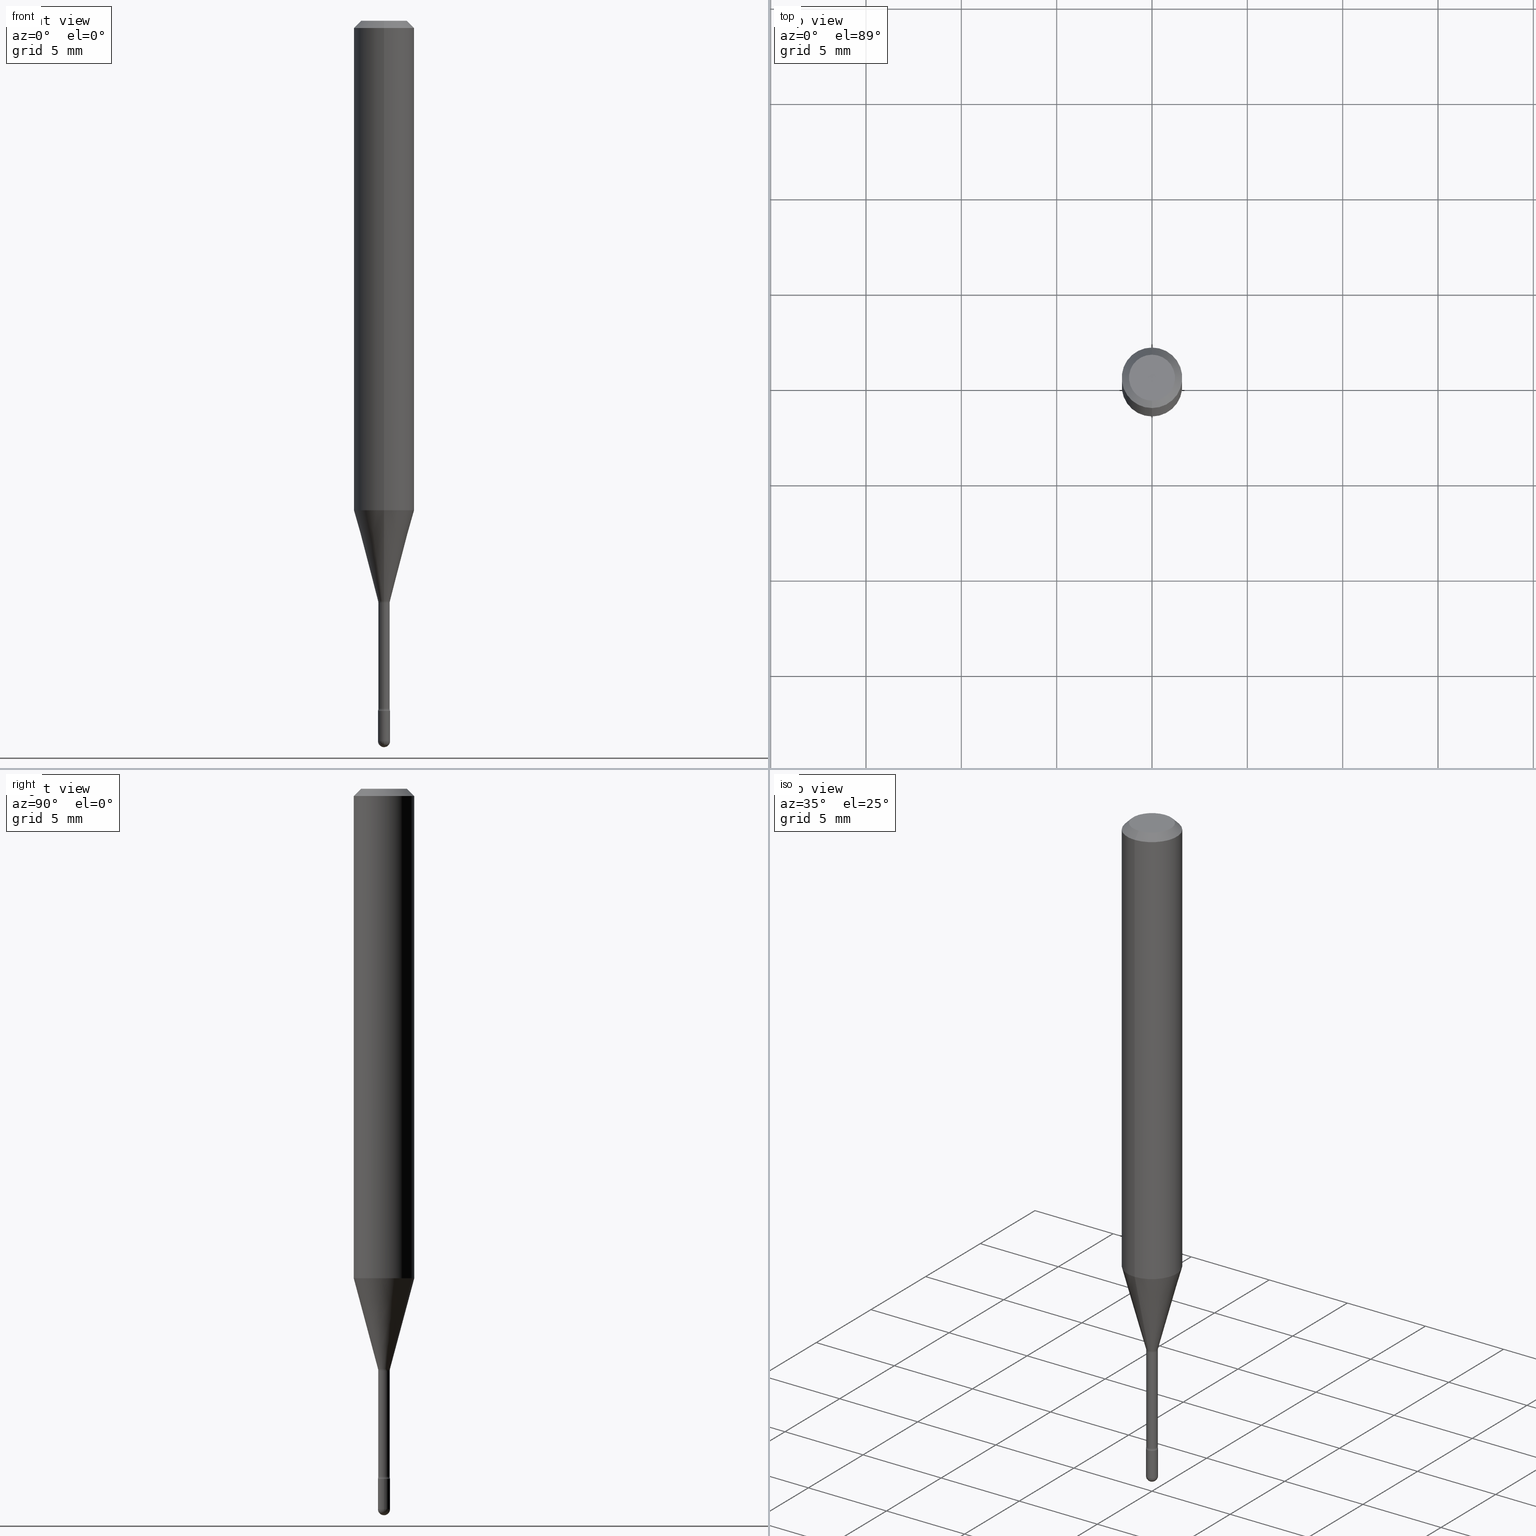
[diagram: canonical four-view strip — front | top / right | iso, engineering-drawing reading convention]
A machine part, canonical four-view strip (front | top / right | iso — engineering-drawing reading convention). The complete STEP part file that produces these views, byte-faithful:
ISO-10303-21;
HEADER;
FILE_DESCRIPTION (( 'STEP AP203' ),
    '1' );
FILE_NAME ('03727.STEP',
    '2024-04-09T20:16:25',
    ( '' ),
    ( '' ),
    'SwSTEP 2.0',
    'SolidWorks 2023',
    '' );
FILE_SCHEMA (( 'CONFIG_CONTROL_DESIGN' ));
ENDSEC;

DATA;
#1 = CARTESIAN_POINT ( 'NONE',  ( -4.364351673553912750E-16, -0.06250000000000005551, -0.01499999999999986587 ) ) ;
#2 = CARTESIAN_POINT ( 'NONE',  ( 3.668277932510605575E-31, -5.237115000342280931E-17, -0.01500000000000008271 ) ) ;
#3 = CIRCLE ( 'NONE', #78, 0.01250000000000000069 ) ;
#4 = ADVANCED_FACE ( 'NONE', ( #554 ), #122, .T. ) ;
#5 = CIRCLE ( 'NONE', #235, 0.01499999999999998904 ) ;
#6 = ORIENTED_EDGE ( 'NONE', *, *, #518, .F. ) ;
#7 = DIRECTION ( 'NONE',  ( 1.000000000000000000, -7.105427357601001070E-15, 4.926314634896017409E-29 ) ) ;
#8 = DIRECTION ( 'NONE',  ( -1.000000000000000000, 6.982962677686265922E-15, -4.883557194083112901E-29 ) ) ;
#9 = DIRECTION ( 'NONE',  ( -2.445468806185136597E-29, 3.491481338843145583E-15, 1.000000000000000000 ) ) ;
#10 = ORIENTED_EDGE ( 'NONE', *, *, #456, .F. ) ;
#11 = ADVANCED_FACE ( 'NONE', ( #324 ), #427, .T. ) ;
#12 = DIRECTION ( 'NONE',  ( -2.445518621673723305E-29, 3.491410000228168223E-15, 1.000000000000000000 ) ) ;
#13 = TOROIDAL_SURFACE ( 'NONE', #341, 0.02675000000000002723, 0.01499999999999998383 ) ;
#14 = ADVANCED_FACE ( 'NONE', ( #383 ), #558, .T. ) ;
#15 = VERTEX_POINT ( 'NONE', #86 ) ;
#16 = EDGE_LOOP ( 'NONE', ( #460, #288, #550, #509, #345 ) ) ;
#17 = PERSON_AND_ORGANIZATION ( #125, #70 ) ;
#18 = FACE_OUTER_BOUND ( 'NONE', #409, .T. ) ;
#19 = APPROVAL ( #496, 'UNSPECIFIED' ) ;
#20 = MANIFOLD_SOLID_BREP ( 'Body-Move/Copy2[2]', #212 ) ;
#21 = ORIENTED_EDGE ( 'NONE', *, *, #343, .F. ) ;
#22 = ORIENTED_EDGE ( 'NONE', *, *, #151, .F. ) ;
#23 = DATE_AND_TIME ( #242, #342 ) ;
#24 = CIRCLE ( 'NONE', #335, 0.04749999999999999362 ) ;
#25 = CONICAL_SURFACE ( 'NONE', #387, 0.01226111260566398360, 0.2617993877991499074 ) ;
#26 = ORIENTED_EDGE ( 'NONE', *, *, #228, .T. ) ;
#27 = ORIENTED_EDGE ( 'NONE', *, *, #188, .F. ) ;
#28 = DIRECTION ( 'NONE',  ( 0.000000000000000000, 0.000000000000000000, 1.000000000000000000 ) ) ;
#29 = ORIENTED_EDGE ( 'NONE', *, *, #251, .F. ) ;
#30 = COORDINATED_UNIVERSAL_TIME_OFFSET ( 5, 0, .BEHIND. ) ;
#31 = VERTEX_POINT ( 'NONE', #252 ) ;
#32 = AXIS2_PLACEMENT_3D ( 'NONE', #201, #236, #194 ) ;
#33 = AXIS2_PLACEMENT_3D ( 'NONE', #146, #451, #50 ) ;
#34 = ADVANCED_FACE ( 'NONE', ( #517 ), #523, .T. ) ;
#35 = DIRECTION ( 'NONE',  ( -6.982962677686266711E-15, -1.000000000000000000, 3.491410000228168223E-15 ) ) ;
#36 = CARTESIAN_POINT ( 'NONE',  ( 3.637634849200391024E-29, -5.193578491529179010E-15, -1.487500000000000266 ) ) ;
#37 = CARTESIAN_POINT ( 'NONE',  ( -8.204981146277921190E-17, -0.01175000000000500297, -1.420316251501201554 ) ) ;
#38 = DIRECTION ( 'NONE',  ( -1.000000000000000000, 6.982962677686266711E-15, -4.883557194083112901E-29 ) ) ;
#39 = CYLINDRICAL_SURFACE ( 'NONE', #408, 0.06250000000000000000 ) ;
#40 = AXIS2_PLACEMENT_3D ( 'NONE', #259, #443, #144 ) ;
#41 = CARTESIAN_POINT ( 'NONE',  ( 3.473409841712008038E-29, -4.958906363977880631E-15, -1.420316251501201554 ) ) ;
#42 = VERTEX_POINT ( 'NONE', #389 ) ;
#43 = DIRECTION ( 'NONE',  ( -1.807323732225327773E-15, -0.2588190451025178529, 0.9659258262890690894 ) ) ;
#44 = EDGE_CURVE ( 'NONE', #263, #101, #67, .T. ) ;
#45 = DIRECTION ( 'NONE',  ( -6.982962677686266711E-15, -1.000000000000000000, 0.000000000000000000 ) ) ;
#46 = ORIENTED_EDGE ( 'NONE', *, *, #128, .F. ) ;
#47 = VECTOR ( 'NONE', #354, 39.37007874015748854 ) ;
#48 = AXIS2_PLACEMENT_3D ( 'NONE', #313, #92, #489 ) ;
#49 = LOCAL_TIME ( 16, 16, 25.00000000000000000, #410 ) ;
#50 = DIRECTION ( 'NONE',  ( 1.000000000000000000, -6.982962677686267499E-15, 4.876176775795936353E-29 ) ) ;
#51 = DIRECTION ( 'NONE',  ( -2.445518621673723586E-29, 3.491410000228167829E-15, 1.000000000000000000 ) ) ;
#52 = FACE_OUTER_BOUND ( 'NONE', #543, .T. ) ;
#53 = VERTEX_POINT ( 'NONE', #77 ) ;
#54 = DIRECTION ( 'NONE',  ( -2.445468806185136597E-29, 3.491481338843145583E-15, 1.000000000000000000 ) ) ;
#55 = ORIENTED_EDGE ( 'NONE', *, *, #179, .T. ) ;
#56 = DIRECTION ( 'NONE',  ( -6.982962677686266711E-15, -1.000000000000000000, 3.491410000228168223E-15 ) ) ;
#57 = VECTOR ( 'NONE', #170, 39.37007874015748143 ) ;
#58 = VERTEX_POINT ( 'NONE', #205 ) ;
#59 = PERSON_AND_ORGANIZATION_ROLE ( 'creator' ) ;
#60 = SECURITY_CLASSIFICATION ( '', '', #286 ) ;
#61 = CARTESIAN_POINT ( 'NONE',  ( -0.01250000000000000069, -4.995651857720318490E-15, -1.425000000000000266 ) ) ;
#62 = CARTESIAN_POINT ( 'NONE',  ( 3.668277932510605575E-31, -5.237115000342280931E-17, -0.01500000000000008271 ) ) ;
#63 = ADVANCED_FACE ( 'NONE', ( #476 ), #118, .F. ) ;
#64 = SHAPE_DEFINITION_REPRESENTATION ( #134, #302 ) ;
#65 = EDGE_LOOP ( 'NONE', ( #395, #225 ) ) ;
#66 = PERSON_AND_ORGANIZATION ( #125, #70 ) ;
#67 = CIRCLE ( 'NONE', #438, 0.06250000000000000000 ) ;
#68 = EDGE_LOOP ( 'NONE', ( #29, #528, #487, #257 ) ) ;
#69 = CIRCLE ( 'NONE', #139, 0.01250000000000000243 ) ;
#70 = ORGANIZATION ( 'UNSPECIFIED', 'UNSPECIFIED', '' ) ;
#71 = EDGE_LOOP ( 'NONE', ( #27, #315, #379, #232 ) ) ;
#72 = CALENDAR_DATE ( 2024, 9, 4 ) ;
#73 = ORIENTED_EDGE ( 'NONE', *, *, #282, .F. ) ;
#74 = APPROVAL ( #504, 'UNSPECIFIED' ) ;
#75 = DIRECTION ( 'NONE',  ( -2.445518621673723586E-29, 3.491410000228167829E-15, 1.000000000000000000 ) ) ;
#76 = DIRECTION ( 'NONE',  ( 7.105427357600997914E-15, 1.000000000000000000, 0.000000000000000000 ) ) ;
#77 = CARTESIAN_POINT ( 'NONE',  ( -3.773273898774340269E-16, -0.04749999999999999362, 8.309155435508116494E-17 ) ) ;
#78 = AXIS2_PLACEMENT_3D ( 'NONE', #477, #303, #434 ) ;
#79 = CONICAL_SURFACE ( 'NONE', #439, 0.01226111260566398360, 0.2617993877991499074 ) ;
#80 = DIRECTION ( 'NONE',  ( -2.445518621673723586E-29, 3.491410000228167829E-15, 1.000000000000000000 ) ) ;
#81 = CARTESIAN_POINT ( 'NONE',  ( 3.637634849200390463E-29, -5.193578491529179010E-15, -1.487499999999999822 ) ) ;
#82 = PLANE ( 'NONE',  #40 ) ;
#83 = EDGE_CURVE ( 'NONE', #263, #553, #386, .T. ) ;
#84 = DIRECTION ( 'NONE',  ( -6.982962677686265133E-15, -1.000000000000000000, 0.000000000000000000 ) ) ;
#85 = CARTESIAN_POINT ( 'NONE',  ( 8.348877145184664215E-17, 0.01174999999999580894, -1.201974787463810701 ) ) ;
#86 = CARTESIAN_POINT ( 'NONE',  ( 3.840629472727447874E-16, 0.04749999999999999362, -2.485923956665947867E-16 ) ) ;
#87 = CARTESIAN_POINT ( 'NONE',  ( 3.473339087963991852E-29, -4.959007687372093417E-15, -1.420316251501201554 ) ) ;
#88 = AXIS2_PLACEMENT_3D ( 'NONE', #181, #494, #314 ) ;
#89 = FACE_OUTER_BOUND ( 'NONE', #511, .T. ) ;
#90 = EDGE_CURVE ( 'NONE', #332, #405, #176, .T. ) ;
#91 = DIRECTION ( 'NONE',  ( -2.445468806185136597E-29, 3.491481338843145583E-15, 1.000000000000000000 ) ) ;
#92 = DIRECTION ( 'NONE',  ( -2.445518621673723586E-29, 3.491410000228167829E-15, 1.000000000000000000 ) ) ;
#93 = ORIENTED_EDGE ( 'NONE', *, *, #280, .F. ) ;
#94 = EDGE_LOOP ( 'NONE', ( #490, #55 ) ) ;
#95 = DIRECTION ( 'NONE',  ( -2.445518621673723586E-29, 3.491410000228167829E-15, 1.000000000000000000 ) ) ;
#96 = ADVANCED_FACE ( 'NONE', ( #262 ), #375, .T. ) ;
#97 = CIRCLE ( 'NONE', #464, 0.06250000000000000000 ) ;
#98 = LINE ( 'NONE', #312, #47 ) ;
#99 = CIRCLE ( 'NONE', #191, 0.01226111260566398360 ) ;
#100 = FACE_OUTER_BOUND ( 'NONE', #65, .T. ) ;
#101 = VERTEX_POINT ( 'NONE', #527 ) ;
#102 = DIRECTION ( 'NONE',  ( 1.000000000000000000, -6.982962677686292743E-15, 0.000000000000000000 ) ) ;
#103 = ORIENTED_EDGE ( 'NONE', *, *, #330, .T. ) ;
#104 = PERSON_AND_ORGANIZATION_ROLE ( 'design_supplier' ) ;
#105 = DIRECTION ( 'NONE',  ( -6.982962677686265922E-15, -1.000000000000000000, 3.483106191921935554E-15 ) ) ;
#106 = ORIENTED_EDGE ( 'NONE', *, *, #421, .T. ) ;
#107 = CIRCLE ( 'NONE', #336, 0.01175000000000000523 ) ;
#108 = ORIENTED_EDGE ( 'NONE', *, *, #233, .F. ) ;
#109 = APPROVAL_PERSON_ORGANIZATION ( #116, #19, #486 ) ;
#110 = ADVANCED_FACE ( 'NONE', ( #265 ), #132, .T. ) ;
#111 = DIRECTION ( 'NONE',  ( -2.445518621673722745E-29, 3.491410000228168223E-15, 1.000000000000000000 ) ) ;
#112 = MECHANICAL_CONTEXT ( 'NONE', #164, 'mechanical' ) ;
#113 = VERTEX_POINT ( 'NONE', #306 ) ;
#114 = ORIENTED_EDGE ( 'NONE', *, *, #330, .F. ) ;
#115 = DESIGN_CONTEXT ( 'detailed design', #211, 'design' ) ;
#116 = PERSON_AND_ORGANIZATION ( #125, #70 ) ;
#117 = DATE_TIME_ROLE ( 'classification_date' ) ;
#118 = TOROIDAL_SURFACE ( 'NONE', #276, 0.02675000000000000294, 0.01499999999999998904 ) ;
#119 = AXIS2_PLACEMENT_3D ( 'NONE', #264, #520, #76 ) ;
#120 = LOCAL_TIME ( 16, 16, 25.00000000000000000, #30 ) ;
#121 = EDGE_CURVE ( 'NONE', #53, #15, #24, .T. ) ;
#122 = PLANE ( 'NONE',  #32 ) ;
#123 = CARTESIAN_POINT ( 'NONE',  ( 3.668737688208442503E-29, -5.236456604015251240E-15, -1.500000000000000222 ) ) ;
#124 = ORIENTED_EDGE ( 'NONE', *, *, #272, .F. ) ;
#125 = PERSON ( 'UNSPECIFIED', 'UNSPECIFIED', 'UNSPECIFIED', ('UNSPECIFIED'), ('UNSPECIFIED'), ('UNSPECIFIED') ) ;
#126 = DIRECTION ( 'NONE',  ( -2.445518621673723586E-29, 3.491410000228167829E-15, 1.000000000000000000 ) ) ;
#127 = AXIS2_PLACEMENT_3D ( 'NONE', #297, #255, #473 ) ;
#128 = EDGE_CURVE ( 'NONE', #491, #384, #418, .T. ) ;
#129 = CIRCLE ( 'NONE', #153, 0.01249999999999996947 ) ;
#130 = ORIENTED_EDGE ( 'NONE', *, *, #440, .F. ) ;
#131 = CARTESIAN_POINT ( 'NONE',  ( 3.484864035885056593E-29, -4.975259250325139718E-15, -1.425000000000000266 ) ) ;
#132 = CYLINDRICAL_SURFACE ( 'NONE', #407, 0.01175000000000002605 ) ;
#133 = ORIENTED_EDGE ( 'NONE', *, *, #121, .F. ) ;
#134 = PRODUCT_DEFINITION_SHAPE ( 'NONE', 'NONE',  #472 ) ;
#135 = CARTESIAN_POINT ( 'NONE',  ( -1.169113584055446105E-44, 1.669184350826100908E-30, 4.780733988912460139E-16 ) ) ;
#136 = EDGE_CURVE ( 'NONE', #500, #101, #98, .T. ) ;
#137 = DIRECTION ( 'NONE',  ( 6.982962677686266711E-15, 1.000000000000000000, 0.000000000000000000 ) ) ;
#138 = DIRECTION ( 'NONE',  ( -2.445518621673723586E-29, 3.491410000228167829E-15, 1.000000000000000000 ) ) ;
#139 = AXIS2_PLACEMENT_3D ( 'NONE', #457, #498, #197 ) ;
#140 = APPROVAL_PERSON_ORGANIZATION ( #294, #295, #289 ) ;
#141 = CARTESIAN_POINT ( 'NONE',  ( 8.728703347111462148E-17, 0.01249999999999479305, -1.487499999999999822 ) ) ;
#142 = EDGE_CURVE ( 'NONE', #31, #58, #309, .T. ) ;
#143 = APPLICATION_PROTOCOL_DEFINITION ( 'international standard', 'config_control_design', 1994, #211 ) ;
#144 = DIRECTION ( 'NONE',  ( 6.982962677686265922E-15, 1.000000000000000000, -3.491410000228168223E-15 ) ) ;
#145 = ORIENTED_EDGE ( 'NONE', *, *, #280, .T. ) ;
#146 = CARTESIAN_POINT ( 'NONE',  ( 0.000000000000000000, 0.000000000000000000, 0.000000000000000000 ) ) ;
#147 = DIRECTION ( 'NONE',  ( -2.445518621673723305E-29, 3.491410000228168223E-15, 1.000000000000000000 ) ) ;
#148 = DIRECTION ( 'NONE',  ( -1.000000000000000000, 7.105427357601001070E-15, -4.926315508542082329E-29 ) ) ;
#149 = VERTEX_POINT ( 'NONE', #123 ) ;
#150 = FACE_OUTER_BOUND ( 'NONE', #274, .T. ) ;
#151 = EDGE_CURVE ( 'NONE', #149, #559, #505, .T. ) ;
#152 = AXIS2_PLACEMENT_3D ( 'NONE', #325, #9, #360 ) ;
#153 = AXIS2_PLACEMENT_3D ( 'NONE', #537, #148, #268 ) ;
#154 = PERSON_AND_ORGANIZATION ( #125, #70 ) ;
#155 = CARTESIAN_POINT ( 'NONE',  ( 0.01250000000000000243, -5.171756733161409821E-15, -1.487499999999999822 ) ) ;
#156 = EDGE_CURVE ( 'NONE', #405, #241, #3, .T. ) ;
#157 = ORIENTED_EDGE ( 'NONE', *, *, #282, .T. ) ;
#158 = ORIENTED_EDGE ( 'NONE', *, *, #151, .T. ) ;
#159 = DIRECTION ( 'NONE',  ( -2.445518621673723586E-29, 3.491410000228167829E-15, 1.000000000000000000 ) ) ;
#160 = CC_DESIGN_PERSON_AND_ORGANIZATION_ASSIGNMENT ( #237, #166, ( #60 ) ) ;
#161 = VERTEX_POINT ( 'NONE', #431 ) ;
#162 = AXIS2_PLACEMENT_3D ( 'NONE', #271, #444, #45 ) ;
#163 = ORIENTED_EDGE ( 'NONE', *, *, #188, .T. ) ;
#164 = APPLICATION_CONTEXT ( 'configuration controlled 3d designs of mechanical parts and assemblies' ) ;
#165 = CALENDAR_DATE ( 2024, 9, 4 ) ;
#166 = PERSON_AND_ORGANIZATION_ROLE ( 'classification_officer' ) ;
#167 = AXIS2_PLACEMENT_3D ( 'NONE', #172, #339, #521 ) ;
#168 = DIRECTION ( 'NONE',  ( -6.982962677686266711E-15, -1.000000000000000000, 3.491410000228168223E-15 ) ) ;
#169 = ORIENTED_EDGE ( 'NONE', *, *, #413, .F. ) ;
#170 = DIRECTION ( 'NONE',  ( 4.937700262164548042E-15, 0.7071067811865451302, -0.7071067811865499042 ) ) ;
#171 = ADVANCED_FACE ( 'NONE', ( #209 ), #382, .T. ) ;
#172 = CARTESIAN_POINT ( 'NONE',  ( -1.169113584055446105E-44, 1.669184350826100908E-30, 4.780733988912460139E-16 ) ) ;
#173 = CARTESIAN_POINT ( 'NONE',  ( 2.471437258851155351E-29, -3.528413435095343554E-15, -1.010598421515879863 ) ) ;
#174 = DIRECTION ( 'NONE',  ( -2.445518621673723586E-29, 3.491410000228167829E-15, 1.000000000000000000 ) ) ;
#175 = VECTOR ( 'NONE', #43, 39.37007874015748143 ) ;
#176 = LINE ( 'NONE', #180, #266 ) ;
#177 = LINE ( 'NONE', #484, #175 ) ;
#178 = ORIENTED_EDGE ( 'NONE', *, *, #136, .T. ) ;
#179 = EDGE_CURVE ( 'NONE', #241, #405, #226, .T. ) ;
#180 = CARTESIAN_POINT ( 'NONE',  ( 0.01250000000000000243, -8.728703347107835853E-17, 6.095220969744921493E-31 ) ) ;
#181 = CARTESIAN_POINT ( 'NONE',  ( 2.929957523608435259E-29, -4.183032141938469542E-15, -1.198092501787273223 ) ) ;
#182 = DIRECTION ( 'NONE',  ( -2.445518621673723586E-29, 3.491410000228167829E-15, 1.000000000000000000 ) ) ;
#183 = CARTESIAN_POINT ( 'NONE',  ( -0.01250000000000000243, -4.995651857720318490E-15, -1.487499999999999822 ) ) ;
#184 = AXIS2_PLACEMENT_3D ( 'NONE', #514, #249, #373 ) ;
#185 = ORIENTED_EDGE ( 'NONE', *, *, #202, .F. ) ;
#186 = DIRECTION ( 'NONE',  ( -6.982962677686265922E-15, -1.000000000000000000, 3.491410000228168223E-15 ) ) ;
#187 = EDGE_LOOP ( 'NONE', ( #565, #157, #246, #185 ) ) ;
#188 = EDGE_CURVE ( 'NONE', #500, #546, #548, .T. ) ;
#189 = DIRECTION ( 'NONE',  ( -6.982962677686265922E-15, -1.000000000000000000, 4.370956789862821150E-15 ) ) ;
#190 = CARTESIAN_POINT ( 'NONE',  ( 2.929957523608435259E-29, -4.183032141938469542E-15, -1.198092501787273223 ) ) ;
#191 = AXIS2_PLACEMENT_3D ( 'NONE', #190, #545, #536 ) ;
#192 = VERTEX_POINT ( 'NONE', #281 ) ;
#193 = CARTESIAN_POINT ( 'NONE',  ( 3.473339087963991852E-29, -4.959007687372093417E-15, -1.420316251501201554 ) ) ;
#194 = DIRECTION ( 'NONE',  ( 1.000000000000000000, -6.982962677686265922E-15, 4.876176775795935793E-29 ) ) ;
#195 = ORIENTED_EDGE ( 'NONE', *, *, #503, .F. ) ;
#196 = PERSON_AND_ORGANIZATION ( #125, #70 ) ;
#197 = DIRECTION ( 'NONE',  ( 1.000000000000000000, -6.982962677686292743E-15, 0.000000000000000000 ) ) ;
#198 = AXIS2_PLACEMENT_3D ( 'NONE', #323, #159, #189 ) ;
#199 = VECTOR ( 'NONE', #12, 39.37007874015748143 ) ;
#200 = ORIENTED_EDGE ( 'NONE', *, *, #142, .T. ) ;
#201 = CARTESIAN_POINT ( 'NONE',  ( 3.484793048813820547E-29, -4.975360907851483175E-15, -1.425000000000000266 ) ) ;
#202 = EDGE_CURVE ( 'NONE', #101, #263, #299, .T. ) ;
#203 = EDGE_LOOP ( 'NONE', ( #370, #145, #130, #195 ) ) ;
#204 = ORIENTED_EDGE ( 'NONE', *, *, #44, .F. ) ;
#205 = CARTESIAN_POINT ( 'NONE',  ( 8.881784197004729967E-17, 0.01249999999999501683, -1.425000000000000266 ) ) ;
#206 = ADVANCED_FACE ( 'NONE', ( #18 ), #402, .T. ) ;
#207 = CARTESIAN_POINT ( 'NONE',  ( 0.000000000000000000, 0.000000000000000000, 0.000000000000000000 ) ) ;
#208 = PRODUCT_RELATED_PRODUCT_CATEGORY ( 'detail', '', ( #296 ) ) ;
#209 = FACE_OUTER_BOUND ( 'NONE', #203, .T. ) ;
#210 = ORIENTED_EDGE ( 'NONE', *, *, #483, .T. ) ;
#211 = APPLICATION_CONTEXT ( 'configuration controlled 3d designs of mechanical parts and assemblies' ) ;
#212 = CLOSED_SHELL ( 'NONE', ( #261, #171, #244, #442, #206, #364, #220, #369, #11, #529, #239, #403, #110, #63 ) ) ;
#213 = EDGE_CURVE ( 'NONE', #553, #192, #97, .T. ) ;
#214 =( CONVERSION_BASED_UNIT ( 'INCH', #441 ) LENGTH_UNIT ( ) NAMED_UNIT ( #346 ) );
#215 = CIRCLE ( 'NONE', #293, 0.06250000000000000000 ) ;
#216 = CC_DESIGN_APPROVAL ( #295, ( #367 ) ) ;
#217 = LINE ( 'NONE', #426, #57 ) ;
#218 = ORIENTED_EDGE ( 'NONE', *, *, #385, .F. ) ;
#219 = DIRECTION ( 'NONE',  ( -2.445518621673723586E-29, 3.491410000228167829E-15, 1.000000000000000000 ) ) ;
#220 = ADVANCED_FACE ( 'NONE', ( #353 ), #79, .T. ) ;
#221 = DIRECTION ( 'NONE',  ( -6.982962677686266711E-15, -1.000000000000000000, 0.000000000000000000 ) ) ;
#222 = LINE ( 'NONE', #380, #234 ) ;
#223 = LINE ( 'NONE', #469, #357 ) ;
#224 = DIRECTION ( 'NONE',  ( 2.445518621673723586E-29, -3.491410000228167829E-15, -1.000000000000000000 ) ) ;
#225 = ORIENTED_EDGE ( 'NONE', *, *, #352, .F. ) ;
#226 = CIRCLE ( 'NONE', #152, 0.01250000000000000069 ) ;
#227 = CIRCLE ( 'NONE', #419, 0.01250000000000000243 ) ;
#228 = EDGE_CURVE ( 'NONE', #384, #31, #539, .T. ) ;
#229 = DIRECTION ( 'NONE',  ( -2.445518621673723586E-29, 3.491410000228167829E-15, 1.000000000000000000 ) ) ;
#230 = CARTESIAN_POINT ( 'NONE',  ( 2.929957523608435259E-29, -4.183032141938469542E-15, -1.198092501787273223 ) ) ;
#231 = DIRECTION ( 'NONE',  ( 7.105427357601000281E-15, 1.000000000000000000, 0.000000000000000000 ) ) ;
#232 = ORIENTED_EDGE ( 'NONE', *, *, #440, .T. ) ;
#233 = EDGE_CURVE ( 'NONE', #559, #423, #69, .T. ) ;
#234 = VECTOR ( 'NONE', #393, 39.37007874015748143 ) ;
#235 = AXIS2_PLACEMENT_3D ( 'NONE', #394, #8, #561 ) ;
#236 = DIRECTION ( 'NONE',  ( -2.438088387897960049E-29, 3.491481338843145188E-15, 1.000000000000000000 ) ) ;
#237 = PERSON_AND_ORGANIZATION ( #125, #70 ) ;
#238 = PLANE ( 'NONE',  #348 ) ;
#239 = ADVANCED_FACE ( 'NONE', ( #100 ), #238, .F. ) ;
#240 = DIRECTION ( 'NONE',  ( 2.445518621673723586E-29, -3.491410000228167829E-15, -1.000000000000000000 ) ) ;
#241 = VERTEX_POINT ( 'NONE', #61 ) ;
#242 = CALENDAR_DATE ( 2024, 9, 4 ) ;
#243 = AXIS2_PLACEMENT_3D ( 'NONE', #530, #38, #137 ) ;
#244 = ADVANCED_FACE ( 'NONE', ( #541 ), #13, .F. ) ;
#245 = ORIENTED_EDGE ( 'NONE', *, *, #90, .T. ) ;
#246 = ORIENTED_EDGE ( 'NONE', *, *, #413, .T. ) ;
#247 = ORIENTED_EDGE ( 'NONE', *, *, #251, .T. ) ;
#248 = PERSON_AND_ORGANIZATION ( #125, #70 ) ;
#249 = DIRECTION ( 'NONE',  ( -2.445518621673723586E-29, 3.491410000228167829E-15, 1.000000000000000000 ) ) ;
#250 = DIRECTION ( 'NONE',  ( -1.000000000000000000, 6.982962677686266711E-15, -4.883557194083112901E-29 ) ) ;
#251 = EDGE_CURVE ( 'NONE', #101, #192, #279, .T. ) ;
#252 = CARTESIAN_POINT ( 'NONE',  ( -8.728703347104342679E-17, -0.01250000000000496894, -1.425000000000000266 ) ) ;
#253 = DIRECTION ( 'NONE',  ( -2.445468806185136597E-29, 3.491481338843145583E-15, 1.000000000000000000 ) ) ;
#254 = CIRCLE ( 'NONE', #366, 0.01250000000000000243 ) ;
#255 = DIRECTION ( 'NONE',  ( 1.000000000000000000, -6.982962677686265922E-15, 4.883557194083112340E-29 ) ) ;
#256 = DIRECTION ( 'NONE',  ( -6.982962677686265133E-15, -1.000000000000000000, 3.491410000228168618E-15 ) ) ;
#257 = ORIENTED_EDGE ( 'NONE', *, *, #483, .F. ) ;
#258 = DIRECTION ( 'NONE',  ( 1.000000000000000000, -6.982962677686292743E-15, 0.000000000000000000 ) ) ;
#259 = CARTESIAN_POINT ( 'NONE',  ( 3.316907271900976096E-16, 0.04749999999999999362, 3.181951410690665652E-17 ) ) ;
#260 = DIRECTION ( 'NONE',  ( 1.000000000000000000, -6.982962677686292743E-15, 0.000000000000000000 ) ) ;
#261 = ADVANCED_FACE ( 'NONE', ( #150 ), #465, .F. ) ;
#262 = FACE_OUTER_BOUND ( 'NONE', #516, .T. ) ;
#263 = VERTEX_POINT ( 'NONE', #452 ) ;
#264 = CARTESIAN_POINT ( 'NONE',  ( 1.900701818158617031E-16, 0.02674999999999506939, -1.420316251501201554 ) ) ;
#265 = FACE_OUTER_BOUND ( 'NONE', #462, .T. ) ;
#266 = VECTOR ( 'NONE', #468, 39.37007874015748143 ) ;
#267 = CIRCLE ( 'NONE', #88, 0.01226111260566398360 ) ;
#268 = DIRECTION ( 'NONE',  ( -7.105427357601001070E-15, -1.000000000000000000, 0.000000000000000000 ) ) ;
#269 = DIRECTION ( 'NONE',  ( -6.982962677686266711E-15, -1.000000000000000000, 3.491410000228168223E-15 ) ) ;
#270 = CARTESIAN_POINT ( 'NONE',  ( 2.656048273965141059E-16, 0.01226111260565980292, -1.198092501787273223 ) ) ;
#271 = CARTESIAN_POINT ( 'NONE',  ( 3.473409841712008038E-29, -4.958906363977880631E-15, -1.420316251501201554 ) ) ;
#272 = EDGE_CURVE ( 'NONE', #423, #113, #449, .T. ) ;
#273 = DIRECTION ( 'NONE',  ( -6.982962677686265922E-15, -1.000000000000000000, 0.000000000000000000 ) ) ;
#274 = EDGE_LOOP ( 'NONE', ( #73, #163, #326, #416 ) ) ;
#275 = DIRECTION ( 'NONE',  ( -6.982962677686265922E-15, -1.000000000000000000, 3.491410000228167829E-15 ) ) ;
#276 = AXIS2_PLACEMENT_3D ( 'NONE', #429, #126, #35 ) ;
#277 = CIRCLE ( 'NONE', #48, 0.01175000000000000523 ) ;
#278 = DIRECTION ( 'NONE',  ( -2.445468806185136877E-29, 3.491481338843145188E-15, 1.000000000000000000 ) ) ;
#279 = LINE ( 'NONE', #287, #328 ) ;
#280 = EDGE_CURVE ( 'NONE', #491, #546, #404, .T. ) ;
#281 = CARTESIAN_POINT ( 'NONE',  ( 4.440892098500874653E-16, 0.06249999999999993755, -0.01500000000000030129 ) ) ;
#282 = EDGE_CURVE ( 'NONE', #500, #161, #99, .T. ) ;
#283 = DATE_AND_TIME ( #415, #310 ) ;
#284 = DIRECTION ( 'NONE',  ( -6.982962677686265922E-15, -1.000000000000000000, 0.000000000000000000 ) ) ;
#285 = TOROIDAL_SURFACE ( 'NONE', #474, 0.02675000000000002723, 0.01499999999999998383 ) ;
#286 = SECURITY_CLASSIFICATION_LEVEL ( 'unclassified' ) ;
#287 = CARTESIAN_POINT ( 'NONE',  ( 4.440892098500625669E-16, 0.06250000000000000000, 2.598602738769855986E-16 ) ) ;
#288 = ORIENTED_EDGE ( 'NONE', *, *, #542, .T. ) ;
#289 = APPROVAL_ROLE ( '' ) ;
#290 = CC_DESIGN_DATE_AND_TIME_ASSIGNMENT ( #359, #512, ( #472 ) ) ;
#291 = ORIENTED_EDGE ( 'NONE', *, *, #347, .F. ) ;
#292 = AXIS2_PLACEMENT_3D ( 'NONE', #62, #240, #338 ) ;
#293 = AXIS2_PLACEMENT_3D ( 'NONE', #2, #182, #488 ) ;
#294 = PERSON_AND_ORGANIZATION ( #125, #70 ) ;
#295 = APPROVAL ( #463, 'UNSPECIFIED' ) ;
#296 = PRODUCT ( '03727', '03727', '', ( #112 ) ) ;
#297 = CARTESIAN_POINT ( 'NONE',  ( 3.637634849200391024E-29, -5.193578491529179010E-15, -1.487500000000000266 ) ) ;
#298 = DIRECTION ( 'NONE',  ( -2.445518621673723586E-29, 3.491410000228167829E-15, 1.000000000000000000 ) ) ;
#299 = CIRCLE ( 'NONE', #198, 0.06250000000000000000 ) ;
#300 = AXIS2_PLACEMENT_3D ( 'NONE', #466, #28, #515 ) ;
#301 = FACE_OUTER_BOUND ( 'NONE', #390, .T. ) ;
#302 = ADVANCED_BREP_SHAPE_REPRESENTATION ( '03727', ( #396, #20, #300 ), #458 ) ;
#303 = DIRECTION ( 'NONE',  ( -2.445468806185136597E-29, 3.491481338843145583E-15, 1.000000000000000000 ) ) ;
#304 = ORIENTED_EDGE ( 'NONE', *, *, #456, .T. ) ;
#305 = CARTESIAN_POINT ( 'NONE',  ( 2.929957523608435259E-29, -4.183032141938469542E-15, -1.198092501787273223 ) ) ;
#306 = CARTESIAN_POINT ( 'NONE',  ( -8.881784196997603102E-17, -0.01250000000000517884, -1.487499999999999822 ) ) ;
#307 =( LENGTH_UNIT ( ) NAMED_UNIT ( * ) SI_UNIT ( $, .METRE. ) );
#308 = PERSON_AND_ORGANIZATION_ROLE ( 'design_owner' ) ;
#309 = CIRCLE ( 'NONE', #184, 0.01250000000000000069 ) ;
#310 = LOCAL_TIME ( 16, 16, 25.00000000000000000, #461 ) ;
#311 = CARTESIAN_POINT ( 'NONE',  ( 8.615330671094704487E-17, 0.01174999999999508729, -1.420316251501201554 ) ) ;
#312 = CARTESIAN_POINT ( 'NONE',  ( 8.712044494294066016E-17, 0.01226111260565980118, -1.198092501787273223 ) ) ;
#313 = CARTESIAN_POINT ( 'NONE',  ( 2.939451725525065070E-29, -4.196586792973275529E-15, -1.201974787463810701 ) ) ;
#314 = DIRECTION ( 'NONE',  ( -6.982962677686265922E-15, -1.000000000000000000, 0.000000000000000000 ) ) ;
#315 = ORIENTED_EDGE ( 'NONE', *, *, #535, .F. ) ;
#316 = ORIENTED_EDGE ( 'NONE', *, *, #83, .F. ) ;
#317 = CARTESIAN_POINT ( 'NONE',  ( 2.023915101249333649E-45, -2.888815411064621442E-31, -8.275042065575681088E-17 ) ) ;
#318 = CARTESIAN_POINT ( 'NONE',  ( 1.900701818158561810E-16, 0.02674999999999580838, -1.201974787463811145 ) ) ;
#319 = CONICAL_SURFACE ( 'NONE', #513, 0.06250000000000000000, 0.7853981633974483900 ) ;
#320 = CC_DESIGN_PERSON_AND_ORGANIZATION_ASSIGNMENT ( #17, #104, ( #367 ) ) ;
#321 = CARTESIAN_POINT ( 'NONE',  ( 2.939391848563758953E-29, -4.196672540189851950E-15, -1.201974787463810923 ) ) ;
#322 = ORIENTED_EDGE ( 'NONE', *, *, #421, .F. ) ;
#323 = CARTESIAN_POINT ( 'NONE',  ( 2.471437258851155351E-29, -3.528413435095343554E-15, -1.010598421515879863 ) ) ;
#324 = FACE_OUTER_BOUND ( 'NONE', #508, .T. ) ;
#325 = CARTESIAN_POINT ( 'NONE',  ( 3.484793048813820547E-29, -4.975360907851483175E-15, -1.425000000000000266 ) ) ;
#326 = ORIENTED_EDGE ( 'NONE', *, *, #334, .T. ) ;
#327 = AXIS2_PLACEMENT_3D ( 'NONE', #207, #435, #344 ) ;
#328 = VECTOR ( 'NONE', #147, 39.37007874015748143 ) ;
#329 = APPROVAL_DATE_TIME ( #23, #74 ) ;
#330 = EDGE_CURVE ( 'NONE', #15, #53, #397, .T. ) ;
#331 = ORIENTED_EDGE ( 'NONE', *, *, #213, .F. ) ;
#332 = VERTEX_POINT ( 'NONE', #155 ) ;
#333 = APPROVAL_DATE_TIME ( #455, #19 ) ;
#334 = EDGE_CURVE ( 'NONE', #546, #42, #277, .T. ) ;
#335 = AXIS2_PLACEMENT_3D ( 'NONE', #433, #481, #168 ) ;
#336 = AXIS2_PLACEMENT_3D ( 'NONE', #492, #229, #273 ) ;
#337 = ORIENTED_EDGE ( 'NONE', *, *, #44, .T. ) ;
#338 = DIRECTION ( 'NONE',  ( 6.982962677686265922E-15, 1.000000000000000000, -3.483106191921935554E-15 ) ) ;
#339 = DIRECTION ( 'NONE',  ( -2.445518621673723586E-29, 3.491410000228167829E-15, 1.000000000000000000 ) ) ;
#340 = AXIS2_PLACEMENT_3D ( 'NONE', #506, #398, #275 ) ;
#341 = AXIS2_PLACEMENT_3D ( 'NONE', #193, #450, #56 ) ;
#342 = LOCAL_TIME ( 16, 16, 25.00000000000000000, #544 ) ;
#343 = EDGE_CURVE ( 'NONE', #384, #491, #428, .T. ) ;
#344 = DIRECTION ( 'NONE',  ( 1.000000000000000000, -6.982962677686267499E-15, 4.876176775795936353E-29 ) ) ;
#345 = ORIENTED_EDGE ( 'NONE', *, *, #385, .T. ) ;
#346 = DIMENSIONAL_EXPONENTS ( 1.000000000000000000, 0.000000000000000000, 0.000000000000000000, 0.000000000000000000, 0.000000000000000000, 0.000000000000000000, 0.000000000000000000 ) ;
#347 = EDGE_CURVE ( 'NONE', #15, #192, #217, .T. ) ;
#348 = AXIS2_PLACEMENT_3D ( 'NONE', #459, #111, #186 ) ;
#349 = ORIENTED_EDGE ( 'NONE', *, *, #228, .F. ) ;
#350 = CARTESIAN_POINT ( 'NONE',  ( 3.637634849200390463E-29, -5.193578491529179010E-15, -1.487499999999999822 ) ) ;
#351 = ORIENTED_EDGE ( 'NONE', *, *, #179, .F. ) ;
#352 = EDGE_CURVE ( 'NONE', #58, #31, #540, .T. ) ;
#353 = FACE_OUTER_BOUND ( 'NONE', #187, .T. ) ;
#354 = DIRECTION ( 'NONE',  ( 1.839019923739597554E-15, 0.2588190451025245697, 0.9659258262890670910 ) ) ;
#355 = EDGE_LOOP ( 'NONE', ( #10, #158, #218, #417 ) ) ;
#356 = DIRECTION ( 'NONE',  ( -6.982962677686266711E-15, -1.000000000000000000, 3.491410000228168223E-15 ) ) ;
#357 = VECTOR ( 'NONE', #381, 39.37007874015748143 ) ;
#358 = LOCAL_TIME ( 16, 16, 25.00000000000000000, #392 ) ;
#359 = DATE_AND_TIME ( #72, #49 ) ;
#360 = DIRECTION ( 'NONE',  ( 1.000000000000000000, -6.982962677686294321E-15, 0.000000000000000000 ) ) ;
#361 = EDGE_LOOP ( 'NONE', ( #46, #368, #437, #349 ) ) ;
#362 = APPROVAL_ROLE ( '' ) ;
#363 = CARTESIAN_POINT ( 'NONE',  ( 3.668277932510605575E-31, -5.237115000342280931E-17, -0.01500000000000008271 ) ) ;
#364 = ADVANCED_FACE ( 'NONE', ( #526 ), #25, .T. ) ;
#365 = AXIS2_PLACEMENT_3D ( 'NONE', #41, #564, #221 ) ;
#366 = AXIS2_PLACEMENT_3D ( 'NONE', #478, #91, #260 ) ;
#367 = PRODUCT_DEFINITION_FORMATION_WITH_SPECIFIED_SOURCE ( 'ANY', '', #296, .NOT_KNOWN. ) ;
#368 = ORIENTED_EDGE ( 'NONE', *, *, #518, .T. ) ;
#369 = ADVANCED_FACE ( 'NONE', ( #436 ), #39, .T. ) ;
#370 = ORIENTED_EDGE ( 'NONE', *, *, #343, .T. ) ;
#371 = EDGE_LOOP ( 'NONE', ( #524, #178, #204, #169 ) ) ;
#372 = EDGE_LOOP ( 'NONE', ( #22, #304, #124, #108 ) ) ;
#373 = DIRECTION ( 'NONE',  ( -6.982962677686265133E-15, -1.000000000000000000, 0.000000000000000000 ) ) ;
#374 = AXIS2_PLACEMENT_3D ( 'NONE', #547, #453, #538 ) ;
#375 = CYLINDRICAL_SURFACE ( 'NONE', #327, 0.01250000000000000243 ) ;
#376 = UNCERTAINTY_MEASURE_WITH_UNIT (LENGTH_MEASURE( 1.000000000000000082E-05 ), #214, 'distance_accuracy_value', 'NONE');
#377 = ORIENTED_EDGE ( 'NONE', *, *, #542, .F. ) ;
#378 = CARTESIAN_POINT ( 'NONE',  ( -4.364351673553916201E-16, -0.06250000000000000000, 6.962865239055065279E-16 ) ) ;
#379 = ORIENTED_EDGE ( 'NONE', *, *, #560, .T. ) ;
#380 = CARTESIAN_POINT ( 'NONE',  ( -4.287811248607203282E-16, -0.06250000000000005551, -0.01499999999999986587 ) ) ;
#381 = DIRECTION ( 'NONE',  ( -2.445518621673723305E-29, 3.491410000228168223E-15, 1.000000000000000000 ) ) ;
#382 = CYLINDRICAL_SURFACE ( 'NONE', #167, 0.01175000000000002605 ) ;
#383 = FACE_OUTER_BOUND ( 'NONE', #372, .T. ) ;
#384 = VERTEX_POINT ( 'NONE', #37 ) ;
#385 = EDGE_CURVE ( 'NONE', #332, #559, #227, .T. ) ;
#386 = LINE ( 'NONE', #378, #556 ) ;
#387 = AXIS2_PLACEMENT_3D ( 'NONE', #305, #174, #563 ) ;
#388 = CC_DESIGN_APPROVAL ( #74, ( #60 ) ) ;
#389 = CARTESIAN_POINT ( 'NONE',  ( -8.204981146278427787E-17, -0.01175000000000420153, -1.201974787463810701 ) ) ;
#390 = EDGE_LOOP ( 'NONE', ( #103, #552 ) ) ;
#391 = CC_DESIGN_PERSON_AND_ORGANIZATION_ASSIGNMENT ( #154, #308, ( #296 ) ) ;
#392 = COORDINATED_UNIVERSAL_TIME_OFFSET ( 5, 0, .BEHIND. ) ;
#393 = DIRECTION ( 'NONE',  ( -4.851104656540964275E-15, -0.7071067811865500152, -0.7071067811865450192 ) ) ;
#394 = CARTESIAN_POINT ( 'NONE',  ( -1.867942516280782514E-16, -0.02675000000000419750, -1.201974787463810701 ) ) ;
#395 = ORIENTED_EDGE ( 'NONE', *, *, #142, .F. ) ;
#396 = MANIFOLD_SOLID_BREP ( 'Body-Move/Copy2[1]', #532 ) ;
#397 = CIRCLE ( 'NONE', #522, 0.04749999999999999362 ) ;
#398 = DIRECTION ( 'NONE',  ( -2.445518621673723586E-29, 3.491410000228167829E-15, 1.000000000000000000 ) ) ;
#399 = CC_DESIGN_APPROVAL ( #19, ( #472 ) ) ;
#400 = CARTESIAN_POINT ( 'NONE',  ( -0.01250000000000000243, 8.881784197001254049E-17, -6.148668862818633278E-31 ) ) ;
#401 = DIRECTION ( 'NONE',  ( 6.982962677686265922E-15, 1.000000000000000000, -3.483106191921935554E-15 ) ) ;
#402 = CYLINDRICAL_SURFACE ( 'NONE', #340, 0.06250000000000000000 ) ;
#403 = ADVANCED_FACE ( 'NONE', ( #89 ), #285, .F. ) ;
#404 = LINE ( 'NONE', #411, #199 ) ;
#405 = VERTEX_POINT ( 'NONE', #531 ) ;
#406 = DIRECTION ( 'NONE',  ( -2.445518621673723586E-29, 3.491410000228167829E-15, 1.000000000000000000 ) ) ;
#407 = AXIS2_PLACEMENT_3D ( 'NONE', #557, #80, #256 ) ;
#408 = AXIS2_PLACEMENT_3D ( 'NONE', #135, #138, #566 ) ;
#409 = EDGE_LOOP ( 'NONE', ( #337, #247, #331, #316 ) ) ;
#410 = COORDINATED_UNIVERSAL_TIME_OFFSET ( 5, 0, .BEHIND. ) ;
#411 = CARTESIAN_POINT ( 'NONE',  ( 8.348877145181194460E-17, 0.01175000000000002605, 4.370493313885649900E-16 ) ) ;
#412 = APPLICATION_PROTOCOL_DEFINITION ( 'international standard', 'config_control_design', 1994, #164 ) ;
#413 = EDGE_CURVE ( 'NONE', #161, #263, #177, .T. ) ;
#414 = ORIENTED_EDGE ( 'NONE', *, *, #213, .T. ) ;
#415 = CALENDAR_DATE ( 2024, 9, 4 ) ;
#416 = ORIENTED_EDGE ( 'NONE', *, *, #560, .F. ) ;
#417 = ORIENTED_EDGE ( 'NONE', *, *, #499, .F. ) ;
#418 = CIRCLE ( 'NONE', #365, 0.01175000000000004513 ) ;
#419 = AXIS2_PLACEMENT_3D ( 'NONE', #81, #253, #258 ) ;
#420 = APPROVAL_PERSON_ORGANIZATION ( #248, #74, #362 ) ;
#421 = EDGE_CURVE ( 'NONE', #53, #553, #222, .T. ) ;
#422 = ORIENTED_EDGE ( 'NONE', *, *, #334, .F. ) ;
#423 = VERTEX_POINT ( 'NONE', #183 ) ;
#424 = DATE_AND_TIME ( #165, #120 ) ;
#425 = ORIENTED_EDGE ( 'NONE', *, *, #499, .T. ) ;
#426 = CARTESIAN_POINT ( 'NONE',  ( 4.364351673553919652E-16, 0.06249999999999995143, -0.01500000000000030129 ) ) ;
#427 = CONICAL_SURFACE ( 'NONE', #292, 0.06250000000000000000, 0.7853981633974483900 ) ;
#428 = CIRCLE ( 'NONE', #162, 0.01175000000000004513 ) ;
#429 = CARTESIAN_POINT ( 'NONE',  ( 2.939391848563758953E-29, -4.196672540189851950E-15, -1.201974787463810923 ) ) ;
#430 = CYLINDRICAL_SURFACE ( 'NONE', #33, 0.01250000000000000243 ) ;
#431 = CARTESIAN_POINT ( 'NONE',  ( -8.561889171223090403E-17, -0.01226111260566816602, -1.198092501787273223 ) ) ;
#432 = ADVANCED_FACE ( 'NONE', ( #534 ), #430, .T. ) ;
#433 = CARTESIAN_POINT ( 'NONE',  ( 2.023915101249333649E-45, -2.888815411064621442E-31, -8.275042065575681088E-17 ) ) ;
#434 = DIRECTION ( 'NONE',  ( 1.000000000000000000, -6.982962677686294321E-15, 0.000000000000000000 ) ) ;
#435 = DIRECTION ( 'NONE',  ( -2.445468806185136597E-29, 3.491481338843145583E-15, 1.000000000000000000 ) ) ;
#436 = FACE_OUTER_BOUND ( 'NONE', #68, .T. ) ;
#437 = ORIENTED_EDGE ( 'NONE', *, *, #352, .T. ) ;
#438 = AXIS2_PLACEMENT_3D ( 'NONE', #173, #298, #562 ) ;
#439 = AXIS2_PLACEMENT_3D ( 'NONE', #230, #406, #284 ) ;
#440 = EDGE_CURVE ( 'NONE', #42, #546, #107, .T. ) ;
#441 = LENGTH_MEASURE_WITH_UNIT ( LENGTH_MEASURE( 0.02539999999999999897 ), #307 );
#442 = ADVANCED_FACE ( 'NONE', ( #52 ), #319, .T. ) ;
#443 = DIRECTION ( 'NONE',  ( 2.445518621673722745E-29, -3.491410000228168223E-15, -1.000000000000000000 ) ) ;
#444 = DIRECTION ( 'NONE',  ( -2.445518621673723586E-29, 3.491410000228167829E-15, 1.000000000000000000 ) ) ;
#445 = ORIENTED_EDGE ( 'NONE', *, *, #347, .T. ) ;
#446 = LINE ( 'NONE', #400, #485 ) ;
#447 = CARTESIAN_POINT ( 'NONE',  ( 3.668277932510605575E-31, -5.237115000342280931E-17, -0.01500000000000008271 ) ) ;
#448 = AXIS2_PLACEMENT_3D ( 'NONE', #318, #7, #231 ) ;
#449 = CIRCLE ( 'NONE', #533, 0.01250000000000000243 ) ;
#450 = DIRECTION ( 'NONE',  ( -2.445518621673723586E-29, 3.491410000228167829E-15, 1.000000000000000000 ) ) ;
#451 = DIRECTION ( 'NONE',  ( -2.445468806185136597E-29, 3.491481338843145583E-15, 1.000000000000000000 ) ) ;
#452 = CARTESIAN_POINT ( 'NONE',  ( -4.364351673553669682E-16, -0.06250000000000353884, -1.010598421515879641 ) ) ;
#453 = DIRECTION ( 'NONE',  ( -1.000000000000000000, 6.982962677686265922E-15, -4.883557194083112901E-29 ) ) ;
#454 = ORIENTED_EDGE ( 'NONE', *, *, #503, .T. ) ;
#455 = DATE_AND_TIME ( #555, #358 ) ;
#456 = EDGE_CURVE ( 'NONE', #149, #113, #129, .T. ) ;
#457 = CARTESIAN_POINT ( 'NONE',  ( 3.637634849200390463E-29, -5.193578491529179010E-15, -1.487499999999999822 ) ) ;
#458 =( GEOMETRIC_REPRESENTATION_CONTEXT ( 3 ) GLOBAL_UNCERTAINTY_ASSIGNED_CONTEXT ( ( #376 ) ) GLOBAL_UNIT_ASSIGNED_CONTEXT ( ( #214, #480, #470 ) ) REPRESENTATION_CONTEXT ( 'NONE', 'WORKASPACE' ) );
#459 = CARTESIAN_POINT ( 'NONE',  ( 8.728703347111317935E-17, 0.01249999999999502551, -1.425000000000000266 ) ) ;
#460 = ORIENTED_EDGE ( 'NONE', *, *, #233, .T. ) ;
#461 = COORDINATED_UNIVERSAL_TIME_OFFSET ( 5, 0, .BEHIND. ) ;
#462 = EDGE_LOOP ( 'NONE', ( #93, #510, #454, #422 ) ) ;
#463 = APPROVAL_STATUS ( 'not_yet_approved' ) ;
#464 = AXIS2_PLACEMENT_3D ( 'NONE', #363, #502, #105 ) ;
#465 = TOROIDAL_SURFACE ( 'NONE', #495, 0.02675000000000000294, 0.01499999999999998904 ) ;
#466 = CARTESIAN_POINT ( 'NONE',  ( 0.000000000000000000, 0.000000000000000000, 0.000000000000000000 ) ) ;
#467 = PERSON_AND_ORGANIZATION_ROLE ( 'creator' ) ;
#468 = DIRECTION ( 'NONE',  ( -2.445468806185136877E-29, 3.491481338843145188E-15, 1.000000000000000000 ) ) ;
#469 = CARTESIAN_POINT ( 'NONE',  ( -8.204981146281379852E-17, -0.01175000000000002605, 5.190974663939271365E-16 ) ) ;
#470 =( NAMED_UNIT ( * ) SI_UNIT ( $, .STERADIAN. ) SOLID_ANGLE_UNIT ( ) );
#471 = DIRECTION ( 'NONE',  ( 6.982962677686266711E-15, 1.000000000000000000, 0.000000000000000000 ) ) ;
#472 = PRODUCT_DEFINITION ( 'UNKNOWN', '', #367, #115 ) ;
#473 = DIRECTION ( 'NONE',  ( 6.982962677686265922E-15, 1.000000000000000000, 0.000000000000000000 ) ) ;
#474 = AXIS2_PLACEMENT_3D ( 'NONE', #87, #219, #269 ) ;
#475 = CC_DESIGN_SECURITY_CLASSIFICATION ( #60, ( #367 ) ) ;
#476 = FACE_OUTER_BOUND ( 'NONE', #71, .T. ) ;
#477 = CARTESIAN_POINT ( 'NONE',  ( 3.484793048813820547E-29, -4.975360907851483175E-15, -1.425000000000000266 ) ) ;
#478 = CARTESIAN_POINT ( 'NONE',  ( 3.637634849200390463E-29, -5.193578491529179010E-15, -1.487499999999999822 ) ) ;
#479 = DIRECTION ( 'NONE',  ( -2.445518621673723305E-29, 3.491410000228168223E-15, 1.000000000000000000 ) ) ;
#480 =( NAMED_UNIT ( * ) PLANE_ANGLE_UNIT ( ) SI_UNIT ( $, .RADIAN. ) );
#481 = DIRECTION ( 'NONE',  ( -2.445518621673723586E-29, 3.491410000228167829E-15, 1.000000000000000000 ) ) ;
#482 = AXIS2_PLACEMENT_3D ( 'NONE', #36, #250, #471 ) ;
#483 = EDGE_CURVE ( 'NONE', #192, #553, #215, .T. ) ;
#484 = CARTESIAN_POINT ( 'NONE',  ( -8.561889171223090403E-17, -0.01226111260566816602, -1.198092501787273223 ) ) ;
#485 = VECTOR ( 'NONE', #278, 39.37007874015748143 ) ;
#486 = APPROVAL_ROLE ( '' ) ;
#487 = ORIENTED_EDGE ( 'NONE', *, *, #83, .T. ) ;
#488 = DIRECTION ( 'NONE',  ( -6.982962677686265922E-15, -1.000000000000000000, 3.483106191921935554E-15 ) ) ;
#489 = DIRECTION ( 'NONE',  ( -6.982962677686265922E-15, -1.000000000000000000, 0.000000000000000000 ) ) ;
#490 = ORIENTED_EDGE ( 'NONE', *, *, #156, .T. ) ;
#491 = VERTEX_POINT ( 'NONE', #311 ) ;
#492 = CARTESIAN_POINT ( 'NONE',  ( 2.939451725525065070E-29, -4.196586792973275529E-15, -1.201974787463810701 ) ) ;
#493 = CC_DESIGN_PERSON_AND_ORGANIZATION_ASSIGNMENT ( #196, #59, ( #472 ) ) ;
#494 = DIRECTION ( 'NONE',  ( -2.445518621673723586E-29, 3.491410000228167829E-15, 1.000000000000000000 ) ) ;
#495 = AXIS2_PLACEMENT_3D ( 'NONE', #321, #51, #497 ) ;
#496 = APPROVAL_STATUS ( 'not_yet_approved' ) ;
#497 = DIRECTION ( 'NONE',  ( -6.982962677686266711E-15, -1.000000000000000000, 3.491410000228168223E-15 ) ) ;
#498 = DIRECTION ( 'NONE',  ( -2.445468806185136597E-29, 3.491481338843145583E-15, 1.000000000000000000 ) ) ;
#499 = EDGE_CURVE ( 'NONE', #113, #332, #254, .T. ) ;
#500 = VERTEX_POINT ( 'NONE', #270 ) ;
#501 = APPROVAL_DATE_TIME ( #283, #295 ) ;
#502 = DIRECTION ( 'NONE',  ( -2.445518621673723586E-29, 3.491410000228167829E-15, 1.000000000000000000 ) ) ;
#503 = EDGE_CURVE ( 'NONE', #384, #42, #223, .T. ) ;
#504 = APPROVAL_STATUS ( 'not_yet_approved' ) ;
#505 = CIRCLE ( 'NONE', #127, 0.01249999999999996947 ) ;
#506 = CARTESIAN_POINT ( 'NONE',  ( -1.169113584055446105E-44, 1.669184350826100908E-30, 4.780733988912460139E-16 ) ) ;
#507 = AXIS2_PLACEMENT_3D ( 'NONE', #131, #75, #84 ) ;
#508 = EDGE_LOOP ( 'NONE', ( #322, #114, #445, #210 ) ) ;
#509 = ORIENTED_EDGE ( 'NONE', *, *, #90, .F. ) ;
#510 = ORIENTED_EDGE ( 'NONE', *, *, #128, .T. ) ;
#511 = EDGE_LOOP ( 'NONE', ( #6, #21, #26, #200 ) ) ;
#512 = DATE_TIME_ROLE ( 'creation_date' ) ;
#513 = AXIS2_PLACEMENT_3D ( 'NONE', #447, #224, #401 ) ;
#514 = CARTESIAN_POINT ( 'NONE',  ( 3.484864035885056593E-29, -4.975259250325139718E-15, -1.425000000000000266 ) ) ;
#515 = DIRECTION ( 'NONE',  ( 1.000000000000000000, 0.000000000000000000, 0.000000000000000000 ) ) ;
#516 = EDGE_LOOP ( 'NONE', ( #377, #551, #425, #245, #351 ) ) ;
#517 = FACE_OUTER_BOUND ( 'NONE', #355, .T. ) ;
#518 = EDGE_CURVE ( 'NONE', #491, #58, #549, .T. ) ;
#519 = CC_DESIGN_DATE_AND_TIME_ASSIGNMENT ( #424, #117, ( #60 ) ) ;
#520 = DIRECTION ( 'NONE',  ( 1.000000000000000000, -7.105427357601001070E-15, 4.926314634896017409E-29 ) ) ;
#521 = DIRECTION ( 'NONE',  ( -6.982962677686265133E-15, -1.000000000000000000, 3.491410000228168618E-15 ) ) ;
#522 = AXIS2_PLACEMENT_3D ( 'NONE', #317, #95, #356 ) ;
#523 = SPHERICAL_SURFACE ( 'NONE', #482, 0.01249999999999996947 ) ;
#524 = ORIENTED_EDGE ( 'NONE', *, *, #535, .T. ) ;
#525 = CC_DESIGN_PERSON_AND_ORGANIZATION_ASSIGNMENT ( #66, #467, ( #367 ) ) ;
#526 = FACE_OUTER_BOUND ( 'NONE', #371, .T. ) ;
#527 = CARTESIAN_POINT ( 'NONE',  ( 4.440892098500871695E-16, 0.06249999999999647504, -1.010598421515880085 ) ) ;
#528 = ORIENTED_EDGE ( 'NONE', *, *, #202, .T. ) ;
#529 = ADVANCED_FACE ( 'NONE', ( #301 ), #82, .F. ) ;
#530 = CARTESIAN_POINT ( 'NONE',  ( 3.637634849200391024E-29, -5.193578491529179010E-15, -1.487500000000000266 ) ) ;
#531 = CARTESIAN_POINT ( 'NONE',  ( 0.01250000000000000069, -5.062647941322562298E-15, -1.425000000000000266 ) ) ;
#532 = CLOSED_SHELL ( 'NONE', ( #432, #14, #4, #34, #96 ) ) ;
#533 = AXIS2_PLACEMENT_3D ( 'NONE', #350, #54, #102 ) ;
#534 = FACE_OUTER_BOUND ( 'NONE', #16, .T. ) ;
#535 = EDGE_CURVE ( 'NONE', #161, #500, #267, .T. ) ;
#536 = DIRECTION ( 'NONE',  ( -6.982962677686265922E-15, -1.000000000000000000, 0.000000000000000000 ) ) ;
#537 = CARTESIAN_POINT ( 'NONE',  ( 3.637634849200391024E-29, -5.193578491529179010E-15, -1.487500000000000266 ) ) ;
#538 = DIRECTION ( 'NONE',  ( -6.982962677686265133E-15, -1.000000000000000000, 0.000000000000000000 ) ) ;
#539 = CIRCLE ( 'NONE', #374, 0.01499999999999998557 ) ;
#540 = CIRCLE ( 'NONE', #507, 0.01250000000000000069 ) ;
#541 = FACE_OUTER_BOUND ( 'NONE', #361, .T. ) ;
#542 = EDGE_CURVE ( 'NONE', #423, #241, #446, .T. ) ;
#543 = EDGE_LOOP ( 'NONE', ( #133, #106, #414, #291 ) ) ;
#544 = COORDINATED_UNIVERSAL_TIME_OFFSET ( 5, 0, .BEHIND. ) ;
#545 = DIRECTION ( 'NONE',  ( -2.445518621673723586E-29, 3.491410000228167829E-15, 1.000000000000000000 ) ) ;
#546 = VERTEX_POINT ( 'NONE', #85 ) ;
#547 = CARTESIAN_POINT ( 'NONE',  ( -1.867942516280730992E-16, -0.02675000000000498854, -1.420316251501201554 ) ) ;
#548 = CIRCLE ( 'NONE', #448, 0.01499999999999998904 ) ;
#549 = CIRCLE ( 'NONE', #119, 0.01499999999999998557 ) ;
#550 = ORIENTED_EDGE ( 'NONE', *, *, #156, .F. ) ;
#551 = ORIENTED_EDGE ( 'NONE', *, *, #272, .T. ) ;
#552 = ORIENTED_EDGE ( 'NONE', *, *, #121, .T. ) ;
#553 = VERTEX_POINT ( 'NONE', #1 ) ;
#554 = FACE_OUTER_BOUND ( 'NONE', #94, .T. ) ;
#555 = CALENDAR_DATE ( 2024, 9, 4 ) ;
#556 = VECTOR ( 'NONE', #479, 39.37007874015748143 ) ;
#557 = CARTESIAN_POINT ( 'NONE',  ( -1.169113584055446105E-44, 1.669184350826100908E-30, 4.780733988912460139E-16 ) ) ;
#558 = SPHERICAL_SURFACE ( 'NONE', #243, 0.01249999999999996947 ) ;
#559 = VERTEX_POINT ( 'NONE', #141 ) ;
#560 = EDGE_CURVE ( 'NONE', #161, #42, #5, .T. ) ;
#561 = DIRECTION ( 'NONE',  ( -6.982962677686267499E-15, -1.000000000000000000, 0.000000000000000000 ) ) ;
#562 = DIRECTION ( 'NONE',  ( -6.982962677686265922E-15, -1.000000000000000000, 4.370956789862821150E-15 ) ) ;
#563 = DIRECTION ( 'NONE',  ( -6.982962677686265922E-15, -1.000000000000000000, 0.000000000000000000 ) ) ;
#564 = DIRECTION ( 'NONE',  ( -2.445518621673723586E-29, 3.491410000228167829E-15, 1.000000000000000000 ) ) ;
#565 = ORIENTED_EDGE ( 'NONE', *, *, #136, .F. ) ;
#566 = DIRECTION ( 'NONE',  ( -6.982962677686265922E-15, -1.000000000000000000, 3.491410000228167829E-15 ) ) ;
ENDSEC;
END-ISO-10303-21;
